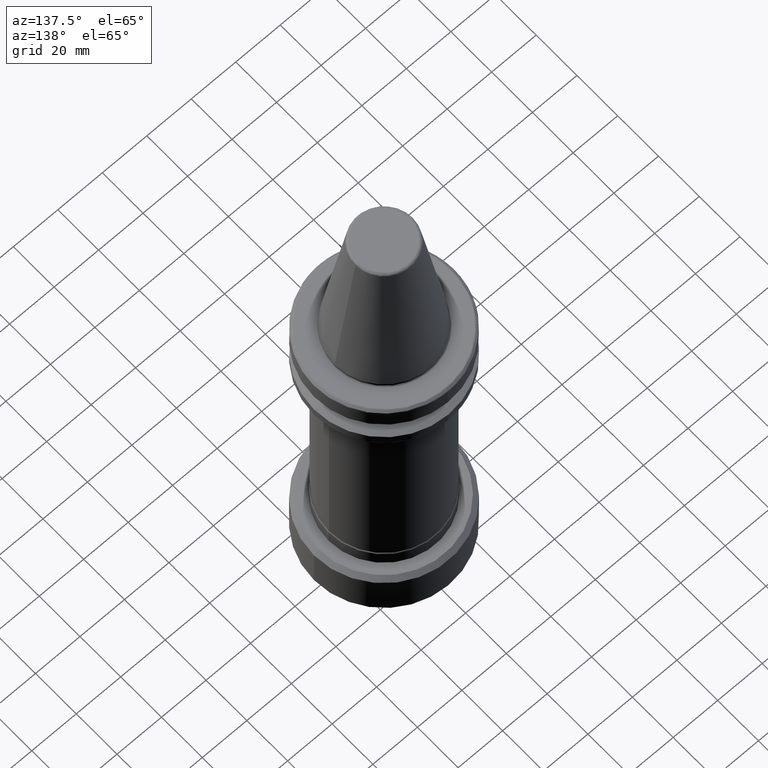
[diagram: clean part render]
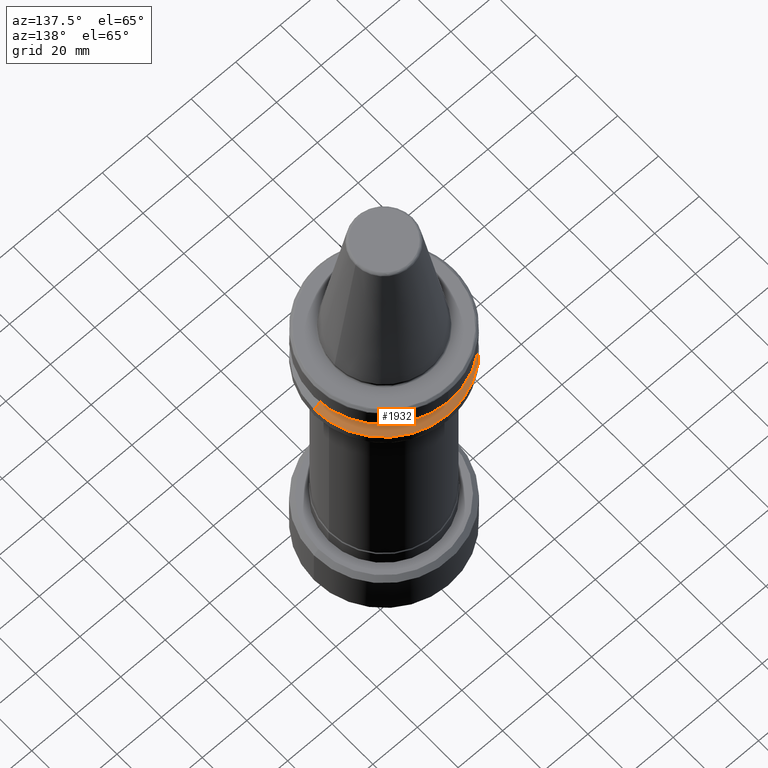
[diagram: same view with one face highlighted and labeled with its STEP entity id]
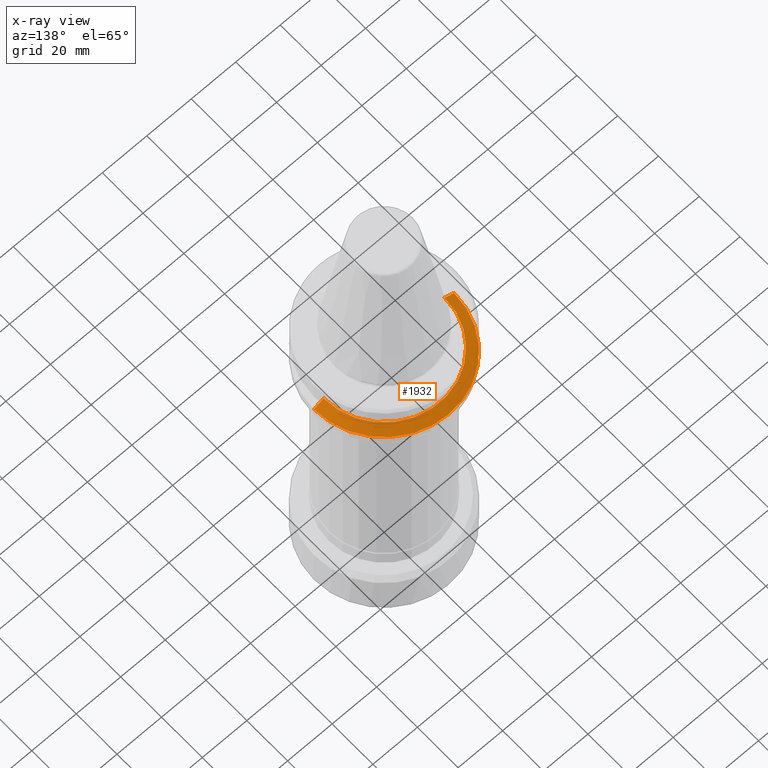
[diagram: x-ray of the same camera — body ghosted, the highlighted face saturated]
A machine part, auxiliary view. The second image highlights one B-rep face of the part: STEP entity #1932.
The next image is the same camera in x-ray: the body ghosted, the highlighted face saturated — about 0% of this face is hidden behind the body in this view.
In plain terms, the highlighted conical surface has half-angle 60 deg.
Its self-contained STEP definition (entity closure, byte-faithful):
#6 = VECTOR ( 'NONE', #1405, 1000.000000000000100 ) ;
#19 = DIRECTION ( 'NONE',  ( -0.0000000000000000000, -0.0000000000000000000, 1.000000000000000000 ) ) ;
#60 = CARTESIAN_POINT ( 'NONE',  ( -27.20076854745277100, 0.0000000000000000000, -19.09999999999745100 ) ) ;
#65 = CARTESIAN_POINT ( 'NONE',  ( 27.20076854745277100, 3.594385415456660200E-015, -19.09999999999745100 ) ) ;
#117 = ORIENTED_EDGE ( 'NONE', *, *, #2632, .F. ) ;
#232 = AXIS2_PLACEMENT_3D ( 'NONE', #1491, #710, #3091 ) ;
#297 = LINE ( 'NONE', #60, #6 ) ;
#313 = DIRECTION ( 'NONE',  ( 1.000000000000000000, 0.0000000000000000000, 0.0000000000000000000 ) ) ;
#517 = VERTEX_POINT ( 'NONE', #65 ) ;
#594 = ORIENTED_EDGE ( 'NONE', *, *, #1513, .F. ) ;
#665 = CARTESIAN_POINT ( 'NONE',  ( 0.0000000000000000000, 0.0000000000000000000, -21.58216243643670800 ) ) ;
#692 = EDGE_CURVE ( 'NONE', #2012, #2369, #2777, .T. ) ;
#710 = DIRECTION ( 'NONE',  ( 0.0000000000000000000, 0.0000000000000000000, -1.000000000000000000 ) ) ;
#767 = CARTESIAN_POINT ( 'NONE',  ( 3.857637417314718000E-015, 31.50000000000453000, -21.58216243643670800 ) ) ;
#785 = CARTESIAN_POINT ( 'NONE',  ( 0.0000000000000000000, 0.0000000000000000000, -19.09999999999745100 ) ) ;
#875 = EDGE_LOOP ( 'NONE', ( #594, #3064, #2058, #1409, #117 ) ) ;
#940 = DIRECTION ( 'NONE',  ( 1.000000000000000000, 0.0000000000000000000, 0.0000000000000000000 ) ) ;
#1050 = DIRECTION ( 'NONE',  ( 1.000000000000000000, 0.0000000000000000000, 0.0000000000000000000 ) ) ;
#1295 = AXIS2_PLACEMENT_3D ( 'NONE', #665, #2522, #940 ) ;
#1405 = DIRECTION ( 'NONE',  ( -0.8660254037844393700, 0.0000000000000000000, -0.4999999999999985000 ) ) ;
#1409 = ORIENTED_EDGE ( 'NONE', *, *, #2062, .T. ) ;
#1440 = VERTEX_POINT ( 'NONE', #1814 ) ;
#1491 = CARTESIAN_POINT ( 'NONE',  ( 0.0000000000000000000, 0.0000000000000000000, -19.09999999999745100 ) ) ;
#1513 = EDGE_CURVE ( 'NONE', #517, #1440, #3281, .T. ) ;
#1814 = CARTESIAN_POINT ( 'NONE',  ( -27.20076854745277100, 0.0000000000000000000, -19.09999999999745100 ) ) ;
#1932 = ADVANCED_FACE ( 'NONE', ( #3301 ), #2876, .T. ) ;
#1988 = CARTESIAN_POINT ( 'NONE',  ( -31.50000000000453000, 0.0000000000000000000, -21.58216243643670800 ) ) ;
#1996 = CARTESIAN_POINT ( 'NONE',  ( 27.20076854745277100, 3.331133413598603500E-015, -19.09999999999745100 ) ) ;
#2012 = VERTEX_POINT ( 'NONE', #2696 ) ;
#2016 = DIRECTION ( 'NONE',  ( 0.8660254037844393700, 1.060575238724907800E-016, -0.4999999999999985000 ) ) ;
#2036 = AXIS2_PLACEMENT_3D ( 'NONE', #3239, #19, #313 ) ;
#2058 = ORIENTED_EDGE ( 'NONE', *, *, #692, .T. ) ;
#2062 = EDGE_CURVE ( 'NONE', #2369, #2812, #2745, .T. ) ;
#2369 = VERTEX_POINT ( 'NONE', #767 ) ;
#2522 = DIRECTION ( 'NONE',  ( -0.0000000000000000000, -0.0000000000000000000, 1.000000000000000000 ) ) ;
#2632 = EDGE_CURVE ( 'NONE', #1440, #2812, #297, .T. ) ;
#2641 = DIRECTION ( 'NONE',  ( -0.0000000000000000000, -0.0000000000000000000, 1.000000000000000000 ) ) ;
#2696 = CARTESIAN_POINT ( 'NONE',  ( 31.50000000000453000, 3.857637417314718000E-015, -21.58216243643670800 ) ) ;
#2715 = LINE ( 'NONE', #1996, #2793 ) ;
#2745 = CIRCLE ( 'NONE', #1295, 31.50000000000453000 ) ;
#2777 = CIRCLE ( 'NONE', #2036, 31.50000000000453000 ) ;
#2793 = VECTOR ( 'NONE', #2016, 1000.000000000000100 ) ;
#2812 = VERTEX_POINT ( 'NONE', #1988 ) ;
#2876 = CONICAL_SURFACE ( 'NONE', #232, 27.20076854745277100, 1.047197551196599400 ) ;
#2895 = EDGE_CURVE ( 'NONE', #517, #2012, #2715, .T. ) ;
#3024 = AXIS2_PLACEMENT_3D ( 'NONE', #785, #2641, #1050 ) ;
#3064 = ORIENTED_EDGE ( 'NONE', *, *, #2895, .T. ) ;
#3091 = DIRECTION ( 'NONE',  ( -1.000000000000000000, 0.0000000000000000000, 0.0000000000000000000 ) ) ;
#3239 = CARTESIAN_POINT ( 'NONE',  ( 0.0000000000000000000, 0.0000000000000000000, -21.58216243643670800 ) ) ;
#3281 = CIRCLE ( 'NONE', #3024, 27.20076854745277100 ) ;
#3301 = FACE_OUTER_BOUND ( 'NONE', #875, .T. ) ;